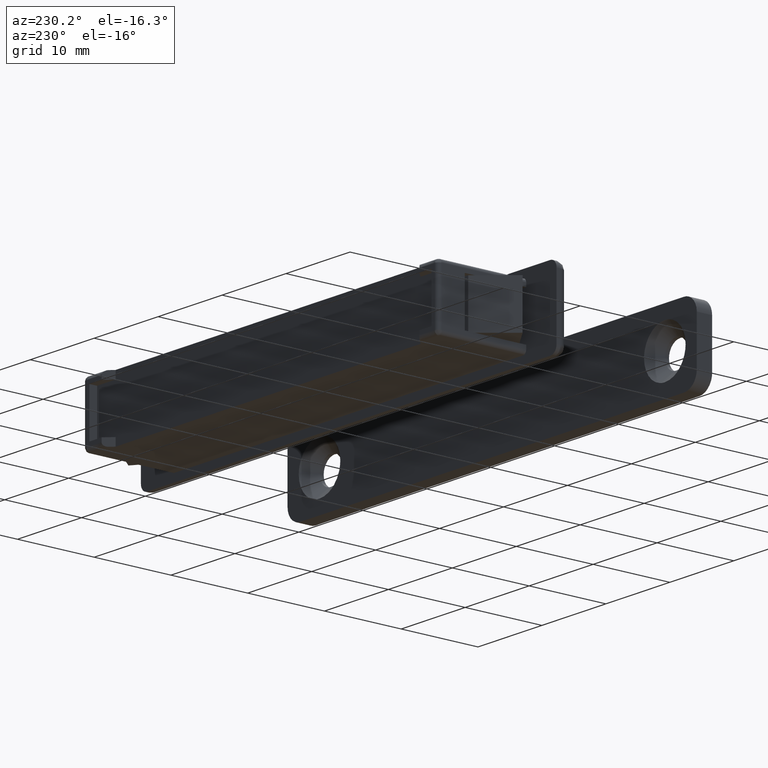
[diagram: clean part render]
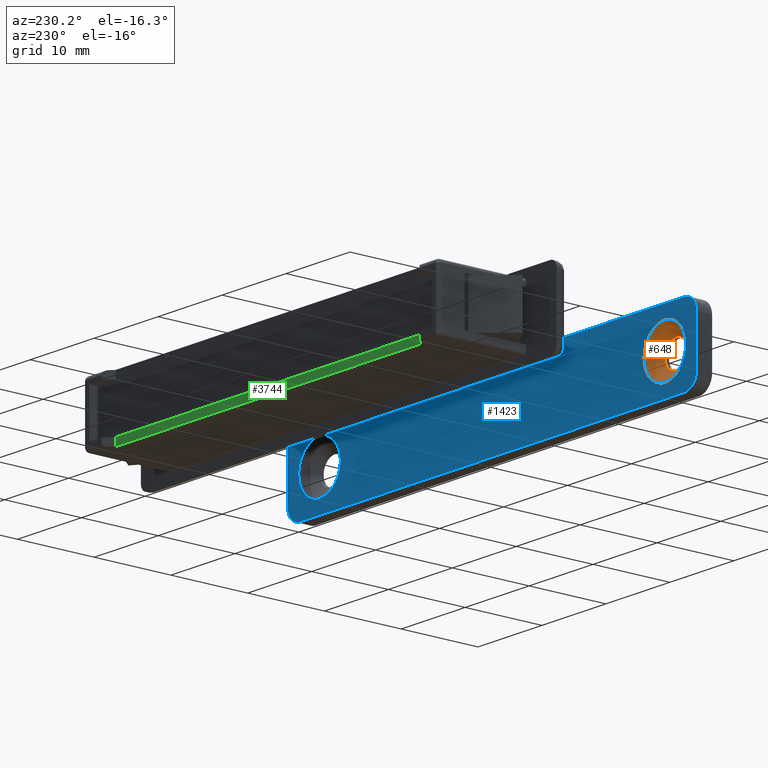
[diagram: same view with three faces highlighted in distinct colors, each labeled with its STEP entity id]
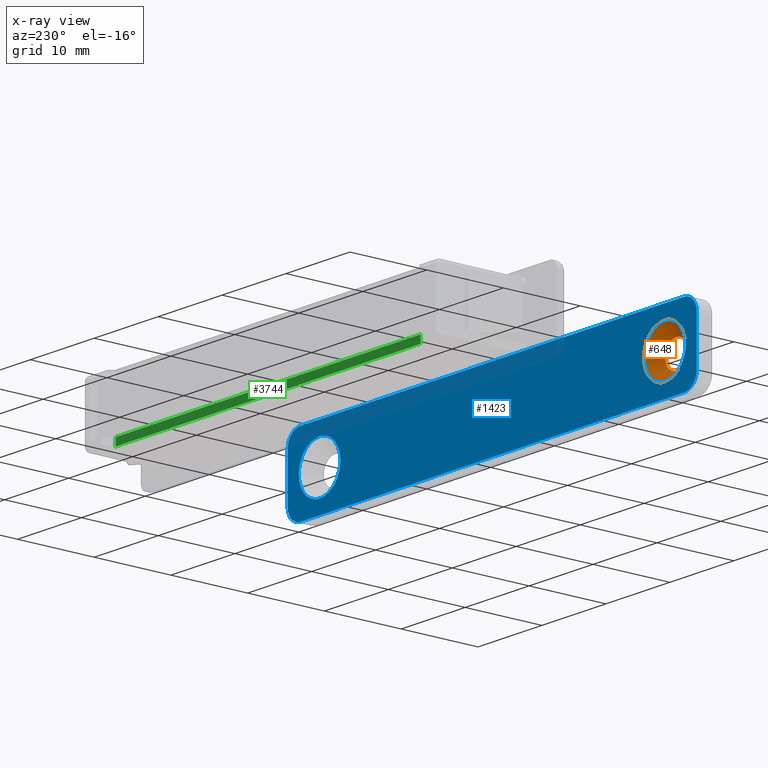
[diagram: x-ray of the same camera — body ghosted, the three highlighted faces saturated]
A machine part, auxiliary view with three faces highlighted in distinct colors.
The next image is the same camera in x-ray (body ghosted, the three faces saturated) — at least one of them is partly hidden behind the body in this view.
Their STEP definitions:

[orange] entity #648 — the highlighted face is a freeform B-spline surface patch.
#363=CARTESIAN_POINT('',(-25.869951581468609,-30.687369108172511,-1.336222202806416));
#364=VERTEX_POINT('',#363);
#365=CARTESIAN_POINT('',(-25.250000000000242,-30.687369108200102,0.000000923100523));
#366=VERTEX_POINT('',#365);
#367=CARTESIAN_POINT('',(-25.869951581468609,-30.687369108172511,-1.336222202806416));
#368=CARTESIAN_POINT('',(-25.785300761706772,-30.687369108173979,-1.264636306362357));
#369=CARTESIAN_POINT('',(-25.596274136952299,-30.687369108178029,-1.071201015653507));
#370=CARTESIAN_POINT('',(-25.331918540911470,-30.687369108187010,-0.633313099112182));
#371=CARTESIAN_POINT('',(-25.249709548635519,-30.687369108195199,-0.237609666251525));
#372=CARTESIAN_POINT('',(-25.250000000000242,-30.687369108200102,0.000000923100523));
#373=B_SPLINE_CURVE_WITH_KNOTS('',3,(#367,#368,#369,#370,#371,#372),.UNSPECIFIED.,.F.,.U.,(4,1,1,4),(0.000000017682369,0.332598493786491,0.807738864515684,1.520450349827912),.UNSPECIFIED.);
#374=EDGE_CURVE('',#364,#366,#373,.T.);
#376=CARTESIAN_POINT('',(-27.0,-30.687369108200102,1.750000000000004));
#377=VERTEX_POINT('',#376);
#378=CARTESIAN_POINT('',(-25.250000000000242,-30.687369108200102,0.000000923100523));
#379=CARTESIAN_POINT('',(-25.249941298082209,-30.687369108200109,0.157496760936301));
#380=CARTESIAN_POINT('',(-25.283092708498589,-30.687369108200102,0.400856575080289));
#381=CARTESIAN_POINT('',(-25.408839391638018,-30.687369108200130,0.752301882576160));
#382=CARTESIAN_POINT('',(-25.575654759185461,-30.687369108200109,1.038542964330779));
#383=CARTESIAN_POINT('',(-25.817191202440149,-30.687369108200080,1.305024050540657));
#384=CARTESIAN_POINT('',(-26.082963952697259,-30.687369108200091,1.502117373181682));
#385=CARTESIAN_POINT('',(-26.470374908150490,-30.687369108200109,1.691266496447891));
#386=CARTESIAN_POINT('',(-26.785208603257392,-30.687369108200048,1.750193415590393));
#387=CARTESIAN_POINT('',(-27.0,-30.687369108200102,1.750000000000004));
#388=B_SPLINE_CURVE_WITH_KNOTS('',3,(#378,#379,#380,#381,#382,#383,#384,#385,#386,#387),.UNSPECIFIED.,.F.,.U.,(4,1,1,1,1,1,1,4),(0.000000048250548,0.472477883818886,0.730195622285962,1.116776416771161,1.460378059243499,1.803995245813557,2.104674478416706,2.748962032298643),.UNSPECIFIED.);
#389=EDGE_CURVE('',#366,#377,#388,.T.);
#391=CARTESIAN_POINT('',(-28.204620388486159,-30.687368992970580,1.269405023894634));
#392=VERTEX_POINT('',#391);
#393=CARTESIAN_POINT('',(-27.0,-30.687369108200102,1.750000000000004));
#394=CARTESIAN_POINT('',(-27.207624327812521,-30.687369088339501,1.750166237444819));
#395=CARTESIAN_POINT('',(-27.650360015809849,-30.687369045989168,1.670201014724547));
#396=CARTESIAN_POINT('',(-28.034121819881971,-30.687369009279799,1.431600104418156));
#397=CARTESIAN_POINT('',(-28.204620388486159,-30.687368992970580,1.269405023894634));
#398=B_SPLINE_CURVE_WITH_KNOTS('',3,(#393,#394,#395,#396,#397),.UNSPECIFIED.,.F.,.U.,(4,1,4),(0.000000025859099,0.622816667539265,1.328662982661026),.UNSPECIFIED.);
#399=EDGE_CURVE('',#377,#392,#398,.T.);
#469=CARTESIAN_POINT('',(-27.0,-30.687369108200102,-1.749999999999997));
#470=VERTEX_POINT('',#469);
#471=CARTESIAN_POINT('',(-27.0,-30.687369108200102,-1.749999999999997));
#472=CARTESIAN_POINT('',(-26.859232223489141,-30.687369108196631,-1.750033574654257));
#473=CARTESIAN_POINT('',(-26.590515749692720,-30.687369108190129,-1.717401579655241));
#474=CARTESIAN_POINT('',(-26.203664045448139,-30.687369108180629,-1.575757406277428));
#475=CARTESIAN_POINT('',(-25.977416404044781,-30.687369108175140,-1.427142975115548));
#476=CARTESIAN_POINT('',(-25.869951581468609,-30.687369108172511,-1.336222202806416));
#477=B_SPLINE_CURVE_WITH_KNOTS('',3,(#471,#472,#473,#474,#475,#476),.UNSPECIFIED.,.F.,.U.,(4,1,1,4),(0.000000025045835,0.422303333709102,0.806211970245157,1.228515278889367),.UNSPECIFIED.);
#478=EDGE_CURVE('',#470,#364,#477,.T.);
#527=CARTESIAN_POINT('',(-28.336222635791561,-30.687369221986049,-1.130048787597618));
#528=VERTEX_POINT('',#527);
#537=CARTESIAN_POINT('',(-28.336222635791561,-30.687369221986049,-1.130048787597618));
#538=CARTESIAN_POINT('',(-28.183009437194489,-30.687369208939170,-1.311678625316899));
#539=CARTESIAN_POINT('',(-27.890177780732749,-30.687369184003181,-1.540762717516679));
#540=CARTESIAN_POINT('',(-27.411752714118940,-30.687369143262789,-1.716908473424129));
#541=CARTESIAN_POINT('',(-27.142542648023380,-30.687369120338388,-1.750038096688676));
#542=CARTESIAN_POINT('',(-27.0,-30.687369108200102,-1.749999999999997));
#543=B_SPLINE_CURVE_WITH_KNOTS('',3,(#537,#538,#539,#540,#541,#542),.UNSPECIFIED.,.F.,.U.,(4,1,1,4),(0.000000017646175,0.712711185059822,1.092823172370281,1.520449671587524),.UNSPECIFIED.);
#544=EDGE_CURVE('',#528,#470,#543,.T.);
#549=CARTESIAN_POINT('',(-28.307589038435637,-30.649869108069261,-1.105833240644721));
#550=CARTESIAN_POINT('',(-28.275940566186481,-30.649869108069257,-1.143255877146503));
#551=CARTESIAN_POINT('',(-28.242203610263630,-30.649869108069250,-1.178807210785480));
#552=CARTESIAN_POINT('',(-27.063396399478155,-30.649869108069254,-2.421010821049109));
#553=CARTESIAN_POINT('',(-25.821192789214521,-30.649869108069250,-1.242203610263625));
#554=CARTESIAN_POINT('',(-24.578989178950895,-30.649869108069254,-0.063396399478141));
#555=CARTESIAN_POINT('',(-25.757796389736370,-30.649869108069250,1.178807210785487));
#556=CARTESIAN_POINT('',(-26.936603600521845,-30.649869108069254,2.421010821049116));
#557=CARTESIAN_POINT('',(-28.178807210785479,-30.649869108069250,1.242203610263632));
#558=CARTESIAN_POINT('',(-29.510905013680748,-32.225806613568025,-2.123482337808179));
#559=CARTESIAN_POINT('',(-29.450131861482390,-32.225806613568018,-2.195343360541967));
#560=CARTESIAN_POINT('',(-29.385348287069469,-32.225806613568018,-2.263611003702958));
#561=CARTESIAN_POINT('',(-27.121737283366510,-32.225806613568018,-4.648959290772429));
#562=CARTESIAN_POINT('',(-24.736388996297041,-32.225806613568018,-2.385348287069467));
#563=CARTESIAN_POINT('',(-22.351040709227576,-32.225806613568018,-0.121737283366506));
#564=CARTESIAN_POINT('',(-24.614651712930531,-32.225806613568018,2.263611003702965));
#565=CARTESIAN_POINT('',(-26.878262716633497,-32.225806613568018,4.648959290772436));
#566=CARTESIAN_POINT('',(-29.263611003702959,-32.225806613568018,2.385348287069474));
#574=(BOUNDED_SURFACE()B_SPLINE_SURFACE(2,1,((#549,#558),(#550,#559),(#551,#560),(#552,#561),(#553,#562),(#554,#563),(#555,#564),(#556,#565),(#557,#566)),.UNSPECIFIED.,.F.,.F.,.U.)B_SPLINE_SURFACE_WITH_KNOTS((3,2,2,2,3),(2,2),(0.0,0.217938466198359,5.666400121157318,11.114861776116280,16.563323431075240),(0.0,2.228712193728781),.UNSPECIFIED.)GEOMETRIC_REPRESENTATION_ITEM()RATIONAL_B_SPLINE_SURFACE(((0.977505800795127,0.977505800795127),(0.988284271247462,0.988284271247462),(1.0,1.0),(0.707106781186548,0.707106781186548),(1.0,1.0),(0.707106781186548,0.707106781186548),(1.0,1.0),(0.707106781186548,0.707106781186548),(1.0,1.0)))REPRESENTATION_ITEM('')SURFACE());
#575=ORIENTED_EDGE('',*,*,#544,.F.);
#576=CARTESIAN_POINT('',(-29.481556037011892,-32.187369197889133,-2.098661791729774));
#577=VERTEX_POINT('',#576);
#578=CARTESIAN_POINT('',(-28.336222635791561,-30.687369221986049,-1.130048787597618));
#579=CARTESIAN_POINT('',(-29.481556037011892,-32.187369197889133,-2.098661791729774));
#580=QUASI_UNIFORM_CURVE('',1,(#578,#579),.UNSPECIFIED.,.F.,.U.);
#581=EDGE_CURVE('',#528,#577,#580,.T.);
#582=ORIENTED_EDGE('',*,*,#581,.T.);
#583=CARTESIAN_POINT('',(-27.0,-32.187369113433903,-3.250000005233816));
#584=VERTEX_POINT('',#583);
#585=CARTESIAN_POINT('',(-29.481556037011892,-32.187369197889133,-2.098661791729774));
#586=CARTESIAN_POINT('',(-29.339129575214759,-32.187369193042002,-2.267115465349023));
#587=CARTESIAN_POINT('',(-28.987877889681702,-32.187369181087497,-2.605637811159906));
#588=CARTESIAN_POINT('',(-28.366338194171650,-32.187369159935088,-2.980820896265155));
#589=CARTESIAN_POINT('',(-27.676484146067349,-32.187369136456269,-3.203412540408775));
#590=CARTESIAN_POINT('',(-27.220594909838500,-32.187369120942002,-3.250028492626062));
#591=CARTESIAN_POINT('',(-27.0,-32.187369113433903,-3.250000005233816));
#592=B_SPLINE_CURVE_WITH_KNOTS('',3,(#585,#586,#587,#588,#589,#590,#591),.UNSPECIFIED.,.F.,.U.,(4,1,1,1,4),(0.000000029024045,0.661786843499547,1.455918935192760,2.161840253436880,2.823627067895351),.UNSPECIFIED.);
#593=EDGE_CURVE('',#577,#584,#592,.T.);
#594=ORIENTED_EDGE('',*,*,#593,.T.);
#595=CARTESIAN_POINT('',(-23.749999994766259,-32.187369113433903,0.000000685151694));
#596=VERTEX_POINT('',#595);
#597=CARTESIAN_POINT('',(-27.0,-32.187369113433903,-3.250000005233816));
#598=CARTESIAN_POINT('',(-26.680914015803499,-32.187369113433952,-3.250134655332743));
#599=CARTESIAN_POINT('',(-26.189105868532351,-32.187369113433782,-3.176961809355476));
#600=CARTESIAN_POINT('',(-25.556020978290761,-32.187369113434087,-2.928224350536132));
#601=CARTESIAN_POINT('',(-25.040966946067240,-32.187369113433753,-2.619554350322326));
#602=CARTESIAN_POINT('',(-24.614819562353979,-32.187369113434023,-2.233306013322116));
#603=CARTESIAN_POINT('',(-24.240684061553790,-32.187369113433839,-1.747783642713261));
#604=CARTESIAN_POINT('',(-23.985308405447110,-32.187369113433860,-1.262871414167093));
#605=CARTESIAN_POINT('',(-23.795735787509269,-32.187369113433988,-0.651408107025271));
#606=CARTESIAN_POINT('',(-23.749953371863349,-32.187369113433903,-0.239300076728683));
#607=CARTESIAN_POINT('',(-23.749999994766259,-32.187369113433903,0.000000685151694));
#608=B_SPLINE_CURVE_WITH_KNOTS('',3,(#597,#598,#599,#600,#601,#602,#603,#604,#605,#606,#607),.UNSPECIFIED.,.F.,.U.,(4,1,1,1,1,1,1,1,4),(0.000000087859366,0.957208614726576,1.475699376697623,2.034085624819463,2.751963562427114,3.190694845469113,3.868724972023653,4.387225236721249,5.105120488736505),.UNSPECIFIED.);
#609=EDGE_CURVE('',#584,#596,#608,.T.);
#610=ORIENTED_EDGE('',*,*,#609,.T.);
#611=CARTESIAN_POINT('',(-27.0,-32.187369113433903,3.250000005233823));
#612=VERTEX_POINT('',#611);
#613=CARTESIAN_POINT('',(-23.749999994766259,-32.187369113433903,0.000000685151694));
#614=CARTESIAN_POINT('',(-23.749990599359080,-32.187369113433903,0.199412730241779));
#615=CARTESIAN_POINT('',(-23.792916038772180,-32.187369113434052,0.664723167888771));
#616=CARTESIAN_POINT('',(-24.011324981169839,-32.187369113433697,1.354291192862505));
#617=CARTESIAN_POINT('',(-24.442327707661558,-32.187369113434123,2.063499576746771));
#618=CARTESIAN_POINT('',(-25.022365761091901,-32.187369113433959,2.622585156587413));
#619=CARTESIAN_POINT('',(-25.697432246465318,-32.187369113433711,3.004928184488423));
#620=CARTESIAN_POINT('',(-26.348578196207029,-32.187369113434293,3.206779937833581));
#621=CARTESIAN_POINT('',(-26.787288468289368,-32.187369113433192,3.250025814918024));
#622=CARTESIAN_POINT('',(-27.0,-32.187369113433903,3.250000005233823));
#623=B_SPLINE_CURVE_WITH_KNOTS('',3,(#613,#614,#615,#616,#617,#618,#619,#620,#621,#622),.UNSPECIFIED.,.F.,.U.,(4,1,1,1,1,1,1,4),(0.000000088103653,0.598241988691055,1.395933335246470,2.153742067195230,3.071035846366633,3.788955230392972,4.466985254511177,5.105119716406013),.UNSPECIFIED.);
#624=EDGE_CURVE('',#596,#612,#623,.T.);
#625=ORIENTED_EDGE('',*,*,#624,.T.);
#626=CARTESIAN_POINT('',(-29.237152197989541,-32.187369027907309,2.357466523470006));
#627=VERTEX_POINT('',#626);
#628=CARTESIAN_POINT('',(-27.0,-32.187369113433903,3.250000005233823));
#629=CARTESIAN_POINT('',(-27.257029825939309,-32.187369103607622,3.250053157478100));
#630=CARTESIAN_POINT('',(-27.796777397915289,-32.187369082973113,3.185669499566602));
#631=CARTESIAN_POINT('',(-28.570820651894529,-32.187369053381140,2.887473166744052));
#632=CARTESIAN_POINT('',(-29.032118238375329,-32.187369035745803,2.552145874814842));
#633=CARTESIAN_POINT('',(-29.237152197989541,-32.187369027907309,2.357466523470006));
#634=B_SPLINE_CURVE_WITH_KNOTS('',3,(#628,#629,#630,#631,#632,#633),.UNSPECIFIED.,.F.,.U.,(4,1,1,4),(0.000000021833471,0.771087116081053,1.619278273036641,2.467473603929150),.UNSPECIFIED.);
#635=EDGE_CURVE('',#612,#627,#634,.T.);
#636=ORIENTED_EDGE('',*,*,#635,.T.);
#637=CARTESIAN_POINT('',(-28.204620388486159,-30.687368992970580,1.269405023894634));
#638=CARTESIAN_POINT('',(-29.237152197989541,-32.187369027907309,2.357466523470006));
#639=QUASI_UNIFORM_CURVE('',1,(#637,#638),.UNSPECIFIED.,.F.,.U.);
#640=EDGE_CURVE('',#392,#627,#639,.T.);
#641=ORIENTED_EDGE('',*,*,#640,.F.);
#642=ORIENTED_EDGE('',*,*,#399,.F.);
#643=ORIENTED_EDGE('',*,*,#389,.F.);
#644=ORIENTED_EDGE('',*,*,#374,.F.);
#645=ORIENTED_EDGE('',*,*,#478,.F.);
#646=EDGE_LOOP('',(#575,#582,#594,#610,#625,#636,#641,#642,#643,#644,#645));
#647=FACE_OUTER_BOUND('',#646,.T.);
#648=ADVANCED_FACE('',(#647),#574,.F.);

[blue] entity #1423 — the highlighted face is a freeform B-spline surface patch.
#576=CARTESIAN_POINT('',(-29.481556037011892,-32.187369197889133,-2.098661791729774));
#577=VERTEX_POINT('',#576);
#583=CARTESIAN_POINT('',(-27.0,-32.187369113433903,-3.250000005233816));
#584=VERTEX_POINT('',#583);
#585=CARTESIAN_POINT('',(-29.481556037011892,-32.187369197889133,-2.098661791729774));
#586=CARTESIAN_POINT('',(-29.339129575214759,-32.187369193042002,-2.267115465349023));
#587=CARTESIAN_POINT('',(-28.987877889681702,-32.187369181087497,-2.605637811159906));
#588=CARTESIAN_POINT('',(-28.366338194171650,-32.187369159935088,-2.980820896265155));
#589=CARTESIAN_POINT('',(-27.676484146067349,-32.187369136456269,-3.203412540408775));
#590=CARTESIAN_POINT('',(-27.220594909838500,-32.187369120942002,-3.250028492626062));
#591=CARTESIAN_POINT('',(-27.0,-32.187369113433903,-3.250000005233816));
#592=B_SPLINE_CURVE_WITH_KNOTS('',3,(#585,#586,#587,#588,#589,#590,#591),.UNSPECIFIED.,.F.,.U.,(4,1,1,1,4),(0.000000029024045,0.661786843499547,1.455918935192760,2.161840253436880,2.823627067895351),.UNSPECIFIED.);
#593=EDGE_CURVE('',#577,#584,#592,.T.);
#595=CARTESIAN_POINT('',(-23.749999994766259,-32.187369113433903,0.000000685151694));
#596=VERTEX_POINT('',#595);
#597=CARTESIAN_POINT('',(-27.0,-32.187369113433903,-3.250000005233816));
#598=CARTESIAN_POINT('',(-26.680914015803499,-32.187369113433952,-3.250134655332743));
#599=CARTESIAN_POINT('',(-26.189105868532351,-32.187369113433782,-3.176961809355476));
#600=CARTESIAN_POINT('',(-25.556020978290761,-32.187369113434087,-2.928224350536132));
#601=CARTESIAN_POINT('',(-25.040966946067240,-32.187369113433753,-2.619554350322326));
#602=CARTESIAN_POINT('',(-24.614819562353979,-32.187369113434023,-2.233306013322116));
#603=CARTESIAN_POINT('',(-24.240684061553790,-32.187369113433839,-1.747783642713261));
#604=CARTESIAN_POINT('',(-23.985308405447110,-32.187369113433860,-1.262871414167093));
#605=CARTESIAN_POINT('',(-23.795735787509269,-32.187369113433988,-0.651408107025271));
#606=CARTESIAN_POINT('',(-23.749953371863349,-32.187369113433903,-0.239300076728683));
#607=CARTESIAN_POINT('',(-23.749999994766259,-32.187369113433903,0.000000685151694));
#608=B_SPLINE_CURVE_WITH_KNOTS('',3,(#597,#598,#599,#600,#601,#602,#603,#604,#605,#606,#607),.UNSPECIFIED.,.F.,.U.,(4,1,1,1,1,1,1,1,4),(0.000000087859366,0.957208614726576,1.475699376697623,2.034085624819463,2.751963562427114,3.190694845469113,3.868724972023653,4.387225236721249,5.105120488736505),.UNSPECIFIED.);
#609=EDGE_CURVE('',#584,#596,#608,.T.);
#611=CARTESIAN_POINT('',(-27.0,-32.187369113433903,3.250000005233823));
#612=VERTEX_POINT('',#611);
#613=CARTESIAN_POINT('',(-23.749999994766259,-32.187369113433903,0.000000685151694));
#614=CARTESIAN_POINT('',(-23.749990599359080,-32.187369113433903,0.199412730241779));
#615=CARTESIAN_POINT('',(-23.792916038772180,-32.187369113434052,0.664723167888771));
#616=CARTESIAN_POINT('',(-24.011324981169839,-32.187369113433697,1.354291192862505));
#617=CARTESIAN_POINT('',(-24.442327707661558,-32.187369113434123,2.063499576746771));
#618=CARTESIAN_POINT('',(-25.022365761091901,-32.187369113433959,2.622585156587413));
#619=CARTESIAN_POINT('',(-25.697432246465318,-32.187369113433711,3.004928184488423));
#620=CARTESIAN_POINT('',(-26.348578196207029,-32.187369113434293,3.206779937833581));
#621=CARTESIAN_POINT('',(-26.787288468289368,-32.187369113433192,3.250025814918024));
#622=CARTESIAN_POINT('',(-27.0,-32.187369113433903,3.250000005233823));
#623=B_SPLINE_CURVE_WITH_KNOTS('',3,(#613,#614,#615,#616,#617,#618,#619,#620,#621,#622),.UNSPECIFIED.,.F.,.U.,(4,1,1,1,1,1,1,4),(0.000000088103653,0.598241988691055,1.395933335246470,2.153742067195230,3.071035846366633,3.788955230392972,4.466985254511177,5.105119716406013),.UNSPECIFIED.);
#624=EDGE_CURVE('',#596,#612,#623,.T.);
#626=CARTESIAN_POINT('',(-29.237152197989541,-32.187369027907309,2.357466523470006));
#627=VERTEX_POINT('',#626);
#628=CARTESIAN_POINT('',(-27.0,-32.187369113433903,3.250000005233823));
#629=CARTESIAN_POINT('',(-27.257029825939309,-32.187369103607622,3.250053157478100));
#630=CARTESIAN_POINT('',(-27.796777397915289,-32.187369082973113,3.185669499566602));
#631=CARTESIAN_POINT('',(-28.570820651894529,-32.187369053381140,2.887473166744052));
#632=CARTESIAN_POINT('',(-29.032118238375329,-32.187369035745803,2.552145874814842));
#633=CARTESIAN_POINT('',(-29.237152197989541,-32.187369027907309,2.357466523470006));
#634=B_SPLINE_CURVE_WITH_KNOTS('',3,(#628,#629,#630,#631,#632,#633),.UNSPECIFIED.,.F.,.U.,(4,1,1,4),(0.000000021833471,0.771087116081053,1.619278273036641,2.467473603929150),.UNSPECIFIED.);
#635=EDGE_CURVE('',#612,#627,#634,.T.);
#666=CARTESIAN_POINT('',(-30.250000005233741,-32.187369113433903,-0.000000685151739));
#667=VERTEX_POINT('',#666);
#668=CARTESIAN_POINT('',(-29.237152197989541,-32.187369027907309,2.357466523470006));
#669=CARTESIAN_POINT('',(-29.446483411396262,-32.187369035109768,2.158939265360506));
#670=CARTESIAN_POINT('',(-29.750795088674870,-32.187369048814013,1.781184551060807));
#671=CARTESIAN_POINT('',(-30.030429409396699,-32.187369069474613,1.211706237691132));
#672=CARTESIAN_POINT('',(-30.204294225071759,-32.187369090010392,0.645647127436156));
#673=CARTESIAN_POINT('',(-30.250055733529539,-32.187369104462761,0.247283863549860));
#674=CARTESIAN_POINT('',(-30.250000005233741,-32.187369113433903,-0.000000685151739));
#675=B_SPLINE_CURVE_WITH_KNOTS('',3,(#668,#669,#670,#671,#672,#673,#674),.UNSPECIFIED.,.F.,.U.,(4,1,1,1,4),(0.000000023645793,0.865481211342152,1.442462168113028,1.895807830567078,2.637647089007378),.UNSPECIFIED.);
#676=EDGE_CURVE('',#627,#667,#675,.T.);
#678=CARTESIAN_POINT('',(-30.250000005233741,-32.187369113433903,-0.000000685151739));
#679=CARTESIAN_POINT('',(-30.250189159287061,-32.187369126824542,-0.332750478927084));
#680=CARTESIAN_POINT('',(-30.178179087961020,-32.187369145469077,-0.796055060121679));
#681=CARTESIAN_POINT('',(-29.904473288978590,-32.187369174082868,-1.507091430457535));
#682=CARTESIAN_POINT('',(-29.673480972135248,-32.187369188763512,-1.871894033261685));
#683=CARTESIAN_POINT('',(-29.481556037011892,-32.187369197889133,-2.098661791729774));
#684=B_SPLINE_CURVE_WITH_KNOTS('',3,(#678,#679,#680,#681,#682,#683),.UNSPECIFIED.,.F.,.U.,(4,1,1,4),(0.000000016687517,0.998161063579456,1.390283530882319,2.281493631990151),.UNSPECIFIED.);
#685=EDGE_CURVE('',#667,#577,#684,.T.);
#925=CARTESIAN_POINT('',(24.518443962988108,-32.187369197889133,-2.098661791729775));
#926=VERTEX_POINT('',#925);
#932=CARTESIAN_POINT('',(27.0,-32.187369113433903,-3.250000005233816));
#933=VERTEX_POINT('',#932);
#934=CARTESIAN_POINT('',(24.518443962988108,-32.187369197889133,-2.098661791729775));
#935=CARTESIAN_POINT('',(24.660869494362601,-32.187369193042016,-2.267116465962977));
#936=CARTESIAN_POINT('',(24.990850641467571,-32.187369181811469,-2.585111740623832));
#937=CARTESIAN_POINT('',(25.606279116762920,-32.187369160867057,-2.968116432639506));
#938=CARTESIAN_POINT('',(26.294107147904210,-32.187369137456812,-3.200425153560568));
#939=CARTESIAN_POINT('',(26.779405283775699,-32.187369120942343,-3.250027158994243));
#940=CARTESIAN_POINT('',(27.0,-32.187369113433903,-3.250000005233816));
#941=B_SPLINE_CURVE_WITH_KNOTS('',3,(#934,#935,#936,#937,#938,#939,#940),.UNSPECIFIED.,.F.,.U.,(4,1,1,1,4),(0.000000029024501,0.661786843499852,1.367708161727390,2.161840253436735,2.823627067895350),.UNSPECIFIED.);
#942=EDGE_CURVE('',#926,#933,#941,.T.);
#944=CARTESIAN_POINT('',(30.250000005233741,-32.187369113433903,0.000000685151698));
#945=VERTEX_POINT('',#944);
#946=CARTESIAN_POINT('',(27.0,-32.187369113433903,-3.250000005233816));
#947=CARTESIAN_POINT('',(27.279191916937311,-32.187369113433917,-3.250086141370569));
#948=CARTESIAN_POINT('',(27.810925808549172,-32.187369113433817,-3.181037429604483));
#949=CARTESIAN_POINT('',(28.595864453428561,-32.187369113433952,-2.872813247946547));
#950=CARTESIAN_POINT('',(29.202544763320191,-32.187369113433917,-2.428608674714964));
#951=CARTESIAN_POINT('',(29.664401947876051,-32.187369113433910,-1.893011062915419));
#952=CARTESIAN_POINT('',(29.994063026546979,-32.187369113433952,-1.327511089607154));
#953=CARTESIAN_POINT('',(30.204180819234690,-32.187369113433618,-0.678017106115645));
#954=CARTESIAN_POINT('',(30.250021573131921,-32.187369113434272,-0.212709627538246));
#955=CARTESIAN_POINT('',(30.250000005233741,-32.187369113433903,0.000000685151698));
#956=B_SPLINE_CURVE_WITH_KNOTS('',3,(#946,#947,#948,#949,#950,#951,#952,#953,#954,#955),.UNSPECIFIED.,.F.,.U.,(4,1,1,1,1,1,1,4),(0.000000087869494,0.837555928062372,1.595353796783525,2.512702859765155,3.071036311594370,3.709187769321139,4.466985930666748,5.105120488736507),.UNSPECIFIED.);
#957=EDGE_CURVE('',#933,#945,#956,.T.);
#959=CARTESIAN_POINT('',(27.0,-32.187369113433903,3.250000005233823));
#960=VERTEX_POINT('',#959);
#961=CARTESIAN_POINT('',(30.250000005233741,-32.187369113433903,0.000000685151698));
#962=CARTESIAN_POINT('',(30.250054606288849,-32.187369113433817,0.265890802698202));
#963=CARTESIAN_POINT('',(30.184393667501482,-32.187369113434080,0.797645566637543));
#964=CARTESIAN_POINT('',(29.909640690990710,-32.187369113433633,1.510017853292336));
#965=CARTESIAN_POINT('',(29.542354238627610,-32.187369113434293,2.052336284016763));
#966=CARTESIAN_POINT('',(29.151331983661411,-32.187369113433533,2.453038786663469));
#967=CARTESIAN_POINT('',(28.650214366467800,-32.187369113433988,2.829616338881191));
#968=CARTESIAN_POINT('',(27.930558186404440,-32.187369113433952,3.159214839767559));
#969=CARTESIAN_POINT('',(27.319082650969140,-32.187369113433917,3.250139778378450));
#970=CARTESIAN_POINT('',(27.0,-32.187369113433903,3.250000005233823));
#971=B_SPLINE_CURVE_WITH_KNOTS('',3,(#961,#962,#963,#964,#965,#966,#967,#968,#969,#970),.UNSPECIFIED.,.F.,.U.,(4,1,1,1,1,1,1,4),(0.000000088101293,0.797663613243443,1.595353555506483,2.273397273112677,2.751963145294753,3.270455044067623,4.147911589176800,5.105119716406011),.UNSPECIFIED.);
#972=EDGE_CURVE('',#945,#960,#971,.T.);
#974=CARTESIAN_POINT('',(24.762847802010459,-32.187369027907309,2.357466523470007));
#975=VERTEX_POINT('',#974);
#976=CARTESIAN_POINT('',(27.0,-32.187369113433903,3.250000005233823));
#977=CARTESIAN_POINT('',(26.717261760404931,-32.187369102624771,3.250085696996137));
#978=CARTESIAN_POINT('',(26.177544567547589,-32.187369081991413,3.179127239136172));
#979=CARTESIAN_POINT('',(25.408226812612309,-32.187369052580188,2.872187477995094));
#980=CARTESIAN_POINT('',(24.967877072308230,-32.187369035745640,2.552157532591250));
#981=CARTESIAN_POINT('',(24.762847802010459,-32.187369027907309,2.357466523470007));
#982=B_SPLINE_CURVE_WITH_KNOTS('',3,(#976,#977,#978,#979,#980,#981),.UNSPECIFIED.,.F.,.U.,(4,1,1,4),(0.000000021829845,0.848195352717656,1.619278273035613,2.467473603929173),.UNSPECIFIED.);
#983=EDGE_CURVE('',#960,#975,#982,.T.);
#1014=CARTESIAN_POINT('',(23.749999994766249,-32.187369113433910,-0.000000685151737));
#1015=VERTEX_POINT('',#1014);
#1016=CARTESIAN_POINT('',(24.762847802010459,-32.187369027907309,2.357466523470007));
#1017=CARTESIAN_POINT('',(24.583439296218970,-32.187369034081222,2.187287420708313));
#1018=CARTESIAN_POINT('',(24.308209081985360,-32.187369046002893,1.858676727813526));
#1019=CARTESIAN_POINT('',(23.977191694419311,-32.187369067935052,1.254137454615939));
#1020=CARTESIAN_POINT('',(23.790307702921432,-32.187369090009483,0.645674598083852));
#1021=CARTESIAN_POINT('',(23.749994218375161,-32.187369106456543,0.192324081502026));
#1022=CARTESIAN_POINT('',(23.749999994766249,-32.187369113433910,-0.000000685151737));
#1023=B_SPLINE_CURVE_WITH_KNOTS('',3,(#1016,#1017,#1018,#1019,#1020,#1021,#1022),.UNSPECIFIED.,.F.,.U.,(4,1,1,1,4),(0.000000023643444,0.741839282070259,1.277623303277757,2.060662814752337,2.637647089007390),.UNSPECIFIED.);
#1024=EDGE_CURVE('',#975,#1015,#1023,.T.);
#1026=CARTESIAN_POINT('',(23.749999994766249,-32.187369113433910,-0.000000685151737));
#1027=CARTESIAN_POINT('',(23.749839388472559,-32.187369126823832,-0.332731461158891));
#1028=CARTESIAN_POINT('',(23.842043116525449,-32.187369150730142,-0.926789140671555));
#1029=CARTESIAN_POINT('',(24.159883530941158,-32.187369178778482,-1.623773992697830));
#1030=CARTESIAN_POINT('',(24.411019031930749,-32.187369192777517,-1.971640972896799));
#1031=CARTESIAN_POINT('',(24.518443962988108,-32.187369197889133,-2.098661791729775));
#1032=B_SPLINE_CURVE_WITH_KNOTS('',3,(#1026,#1027,#1028,#1029,#1030,#1031),.UNSPECIFIED.,.F.,.U.,(4,1,1,4),(0.000000016686245,0.998161063578762,1.782417803610013,2.281493631990172),.UNSPECIFIED.);
#1033=EDGE_CURVE('',#1015,#926,#1032,.T.);
#1069=CARTESIAN_POINT('',(32.0,-32.187369113433903,-2.999999232055145));
#1070=VERTEX_POINT('',#1069);
#1076=CARTESIAN_POINT('',(30.0,-32.187369113433903,-5.0));
#1077=VERTEX_POINT('',#1076);
#1078=CARTESIAN_POINT('',(30.0,-32.187369113433903,-5.0));
#1079=CARTESIAN_POINT('',(30.261830511099749,-32.187369113433959,-5.000265744762678));
#1080=CARTESIAN_POINT('',(30.719796999665778,-32.187369113433888,-4.908729140806244));
#1081=CARTESIAN_POINT('',(31.230493500821659,-32.187369113433903,-4.602530280236195));
#1082=CARTESIAN_POINT('',(31.544353866903169,-32.187369113433959,-4.288580525211100));
#1083=CARTESIAN_POINT('',(31.758047371174271,-32.187369113433768,-3.977120960692693));
#1084=CARTESIAN_POINT('',(31.944646521946702,-32.187369113434087,-3.556258529885468));
#1085=CARTESIAN_POINT('',(32.000115248376908,-32.187369113433810,-3.212726899965575));
#1086=CARTESIAN_POINT('',(32.0,-32.187369113433903,-2.999999232055145));
#1087=B_SPLINE_CURVE_WITH_KNOTS('',3,(#1078,#1079,#1080,#1081,#1082,#1083,#1084,#1085,#1086),.UNSPECIFIED.,.F.,.U.,(4,1,1,1,1,1,4),(0.000000038508486,0.785418770074340,1.374492982340101,1.767184889608941,2.110808771294588,2.503520657945915,3.141671921506530),.UNSPECIFIED.);
#1088=EDGE_CURVE('',#1077,#1070,#1087,.T.);
#1111=CARTESIAN_POINT('',(-29.999999022615700,-32.187369113433903,-4.999999999999780));
#1112=VERTEX_POINT('',#1111);
#1113=CARTESIAN_POINT('',(-29.999999022615700,-32.187369113433903,-4.999999999999780));
#1114=CARTESIAN_POINT('',(30.0,-32.187369113433903,-5.0));
#1115=QUASI_UNIFORM_CURVE('',1,(#1113,#1114),.UNSPECIFIED.,.F.,.U.);
#1116=EDGE_CURVE('',#1112,#1077,#1115,.T.);
#1155=CARTESIAN_POINT('',(-32.0,-32.187369113433903,-3.0));
#1156=VERTEX_POINT('',#1155);
#1157=CARTESIAN_POINT('',(-32.0,-32.187369113433903,-3.0));
#1158=CARTESIAN_POINT('',(-32.000172227457583,-32.187369113434002,-3.229096978229139));
#1159=CARTESIAN_POINT('',(-31.931751161910391,-32.187369113433803,-3.621682336412470));
#1160=CARTESIAN_POINT('',(-31.694538259555209,-32.187369113433860,-4.092899900276610));
#1161=CARTESIAN_POINT('',(-31.423328845017451,-32.187369113434123,-4.423332472636164));
#1162=CARTESIAN_POINT('',(-31.131010237896160,-32.187369113433562,-4.663224904216293));
#1163=CARTESIAN_POINT('',(-30.785709217930211,-32.187369113434151,-4.853293005027373));
#1164=CARTESIAN_POINT('',(-30.409058860003508,-32.187369113434002,-4.972605781614158));
#1165=CARTESIAN_POINT('',(-30.130896819741100,-32.187369113433803,-5.000014923297562));
#1166=CARTESIAN_POINT('',(-29.999999022615700,-32.187369113433903,-4.999999999999780));
#1167=B_SPLINE_CURVE_WITH_KNOTS('',3,(#1157,#1158,#1159,#1160,#1161,#1162,#1163,#1164,#1165,#1166),.UNSPECIFIED.,.F.,.U.,(4,1,1,1,1,1,1,4),(0.000000038365726,0.687238201869331,1.178138466524245,1.570836075590836,1.963540752082250,2.307165337031544,2.748967363118379,3.141672039552794),.UNSPECIFIED.);
#1168=EDGE_CURVE('',#1156,#1112,#1167,.T.);
#1191=CARTESIAN_POINT('',(-32.0,-32.187369113433903,2.999999825467075));
#1192=VERTEX_POINT('',#1191);
#1193=CARTESIAN_POINT('',(-32.0,-32.187369113433903,2.999999825467075));
#1194=CARTESIAN_POINT('',(-32.0,-32.187369113433903,-3.0));
#1195=QUASI_UNIFORM_CURVE('',1,(#1193,#1194),.UNSPECIFIED.,.F.,.U.);
#1196=EDGE_CURVE('',#1192,#1156,#1195,.T.);
#1236=CARTESIAN_POINT('',(-30.0,-32.187369113433903,5.0));
#1237=VERTEX_POINT('',#1236);
#1238=CARTESIAN_POINT('',(-30.0,-32.187369113433903,5.0));
#1239=CARTESIAN_POINT('',(-30.229102708951640,-32.187369113433839,5.000177779685336));
#1240=CARTESIAN_POINT('',(-30.588950375532530,-32.187369113433988,4.937433395843406));
#1241=CARTESIAN_POINT('',(-31.034842082663310,-32.187369113433867,4.726512990419826));
#1242=CARTESIAN_POINT('',(-31.325361420659799,-32.187369113433917,4.511036509911104));
#1243=CARTESIAN_POINT('',(-31.585569450396349,-32.187369113433931,4.237740220570441));
#1244=CARTESIAN_POINT('',(-31.801049075268089,-32.187369113433888,3.906573923997311));
#1245=CARTESIAN_POINT('',(-31.961633175271860,-32.187369113433931,3.474492091590246));
#1246=CARTESIAN_POINT('',(-32.000037998498300,-32.187369113433910,3.163627942865508));
#1247=CARTESIAN_POINT('',(-32.0,-32.187369113433903,2.999999825467075));
#1248=B_SPLINE_CURVE_WITH_KNOTS('',3,(#1238,#1239,#1240,#1241,#1242,#1243,#1244,#1245,#1246,#1247),.UNSPECIFIED.,.F.,.U.,(4,1,1,1,1,1,1,4),(0.000000038918749,0.687238103344991,1.079959122903125,1.472666503644301,1.767184701078545,2.208987044376629,2.650788249982250,3.141671587041282),.UNSPECIFIED.);
#1249=EDGE_CURVE('',#1237,#1192,#1248,.T.);
#1272=CARTESIAN_POINT('',(29.999999685840748,-32.187369113433903,5.0));
#1273=VERTEX_POINT('',#1272);
#1274=CARTESIAN_POINT('',(29.999999685840748,-32.187369113433903,5.0));
#1275=CARTESIAN_POINT('',(-30.0,-32.187369113433903,5.0));
#1276=QUASI_UNIFORM_CURVE('',1,(#1274,#1275),.UNSPECIFIED.,.F.,.U.);
#1277=EDGE_CURVE('',#1273,#1237,#1276,.T.);
#1317=CARTESIAN_POINT('',(32.0,-32.187369113433903,3.000000767944870));
#1318=VERTEX_POINT('',#1317);
#1319=CARTESIAN_POINT('',(32.0,-32.187369113433903,3.000000767944870));
#1320=CARTESIAN_POINT('',(32.000009252664377,-32.187369113433910,3.130895963031854));
#1321=CARTESIAN_POINT('',(31.971016293771651,-32.187369113433867,3.425429047166230));
#1322=CARTESIAN_POINT('',(31.836559300306291,-32.187369113433988,3.832427069084949));
#1323=CARTESIAN_POINT('',(31.616760613497888,-32.187369113433789,4.199070586806875));
#1324=CARTESIAN_POINT('',(31.296623455816739,-32.187369113433917,4.552453297391340));
#1325=CARTESIAN_POINT('',(30.879923812792491,-32.187369113433931,4.823542647495459));
#1326=CARTESIAN_POINT('',(30.409051812313351,-32.187369113433860,4.972592724007548));
#1327=CARTESIAN_POINT('',(30.130897427471240,-32.187369113433917,5.000015367681320));
#1328=CARTESIAN_POINT('',(29.999999685840748,-32.187369113433903,5.0));
#1329=B_SPLINE_CURVE_WITH_KNOTS('',3,(#1319,#1320,#1321,#1322,#1323,#1324,#1325,#1326,#1327,#1328),.UNSPECIFIED.,.F.,.U.,(4,1,1,1,1,1,1,4),(0.000000039346948,0.392699937203587,0.883599018401706,1.276316278339115,1.669008739285584,2.307164744765522,2.748966656854632,3.141671232901895),.UNSPECIFIED.);
#1330=EDGE_CURVE('',#1318,#1273,#1329,.T.);
#1351=CARTESIAN_POINT('',(32.0,-32.187369113433903,-2.999999232055145));
#1352=CARTESIAN_POINT('',(32.0,-32.187369113433903,3.000000767944870));
#1353=QUASI_UNIFORM_CURVE('',1,(#1351,#1352),.UNSPECIFIED.,.F.,.U.);
#1354=EDGE_CURVE('',#1070,#1318,#1353,.T.);
#1392=CARTESIAN_POINT('',(-35.196799875955577,-32.187369113433903,5.499499980618060));
#1393=CARTESIAN_POINT('',(35.196801592569351,-32.187369113433903,5.499499980618060));
#1394=CARTESIAN_POINT('',(-35.196799875955577,-32.187369113433903,-5.499500248838961));
#1395=CARTESIAN_POINT('',(35.196801592569351,-32.187369113433903,-5.499500248838961));
#1396=B_SPLINE_SURFACE_WITH_KNOTS('',1,1,((#1392,#1394),(#1393,#1395)),.UNSPECIFIED.,.F.,.F.,.U.,(2,2),(2,2),(0.0,70.393601468524935),(0.0,10.999000229457019),.UNSPECIFIED.);
#1397=ORIENTED_EDGE('',*,*,#1354,.T.);
#1398=ORIENTED_EDGE('',*,*,#1330,.T.);
#1399=ORIENTED_EDGE('',*,*,#1277,.T.);
#1400=ORIENTED_EDGE('',*,*,#1249,.T.);
#1401=ORIENTED_EDGE('',*,*,#1196,.T.);
#1402=ORIENTED_EDGE('',*,*,#1168,.T.);
#1403=ORIENTED_EDGE('',*,*,#1116,.T.);
#1404=ORIENTED_EDGE('',*,*,#1088,.T.);
#1405=EDGE_LOOP('',(#1397,#1398,#1399,#1400,#1401,#1402,#1403,#1404));
#1406=FACE_OUTER_BOUND('',#1405,.T.);
#1407=ORIENTED_EDGE('',*,*,#957,.F.);
#1408=ORIENTED_EDGE('',*,*,#942,.F.);
#1409=ORIENTED_EDGE('',*,*,#1033,.F.);
#1410=ORIENTED_EDGE('',*,*,#1024,.F.);
#1411=ORIENTED_EDGE('',*,*,#983,.F.);
#1412=ORIENTED_EDGE('',*,*,#972,.F.);
#1413=EDGE_LOOP('',(#1407,#1408,#1409,#1410,#1411,#1412));
#1414=FACE_BOUND('',#1413,.T.);
#1415=ORIENTED_EDGE('',*,*,#609,.F.);
#1416=ORIENTED_EDGE('',*,*,#593,.F.);
#1417=ORIENTED_EDGE('',*,*,#685,.F.);
#1418=ORIENTED_EDGE('',*,*,#676,.F.);
#1419=ORIENTED_EDGE('',*,*,#635,.F.);
#1420=ORIENTED_EDGE('',*,*,#624,.F.);
#1421=EDGE_LOOP('',(#1415,#1416,#1417,#1418,#1419,#1420));
#1422=FACE_BOUND('',#1421,.T.);
#1423=ADVANCED_FACE('',(#1406,#1414,#1422),#1396,.F.);

[green] entity #3744 — the highlighted face is a freeform B-spline surface patch.
#2930=CARTESIAN_POINT('',(-23.850006000000000,-1.0,-4.0));
#2931=VERTEX_POINT('',#2930);
#2937=CARTESIAN_POINT('',(23.850003000000001,-1.0,-4.0));
#2938=VERTEX_POINT('',#2937);
#2939=CARTESIAN_POINT('',(23.850003000000001,-1.0,-4.0));
#2940=CARTESIAN_POINT('',(-23.850006000000000,-1.0,-4.0));
#2941=QUASI_UNIFORM_CURVE('',1,(#2939,#2940),.UNSPECIFIED.,.F.,.U.);
#2942=EDGE_CURVE('',#2938,#2931,#2941,.T.);
#3536=CARTESIAN_POINT('',(23.850003000000001,-1.0,-3.0));
#3537=VERTEX_POINT('',#3536);
#3543=CARTESIAN_POINT('',(-23.850006000000000,-1.0,-3.0));
#3544=VERTEX_POINT('',#3543);
#3545=CARTESIAN_POINT('',(-23.850006000000000,-1.0,-3.0));
#3546=CARTESIAN_POINT('',(23.850003000000001,-1.0,-3.0));
#3547=QUASI_UNIFORM_CURVE('',1,(#3545,#3546),.UNSPECIFIED.,.F.,.U.);
#3548=EDGE_CURVE('',#3544,#3537,#3547,.T.);
#3720=CARTESIAN_POINT('',(23.850003000000001,-1.0,-4.0));
#3721=CARTESIAN_POINT('',(23.850003000000001,-1.0,-3.0));
#3722=QUASI_UNIFORM_CURVE('',1,(#3720,#3721),.UNSPECIFIED.,.F.,.U.);
#3723=EDGE_CURVE('',#2938,#3537,#3722,.T.);
#3729=CARTESIAN_POINT('',(-26.232621634453750,-1.0,-4.049949998061805));
#3730=CARTESIAN_POINT('',(-26.232621634453750,-1.0,-2.950049975116103));
#3731=CARTESIAN_POINT('',(26.232616075625870,-1.0,-4.049949998061805));
#3732=CARTESIAN_POINT('',(26.232616075625870,-1.0,-2.950049975116103));
#3733=B_SPLINE_SURFACE_WITH_KNOTS('',1,1,((#3729,#3731),(#3730,#3732)),.UNSPECIFIED.,.F.,.F.,.U.,(2,2),(2,2),(0.041708334948495,0.958291687403247),(0.0,52.465237710079620),.UNSPECIFIED.);
#3734=CARTESIAN_POINT('',(-23.850006000000000,-1.0,-4.0));
#3735=CARTESIAN_POINT('',(-23.850006000000000,-1.0,-3.0));
#3736=QUASI_UNIFORM_CURVE('',1,(#3734,#3735),.UNSPECIFIED.,.F.,.U.);
#3737=EDGE_CURVE('',#2931,#3544,#3736,.T.);
#3738=ORIENTED_EDGE('',*,*,#3737,.T.);
#3739=ORIENTED_EDGE('',*,*,#3548,.T.);
#3740=ORIENTED_EDGE('',*,*,#3723,.F.);
#3741=ORIENTED_EDGE('',*,*,#2942,.T.);
#3742=EDGE_LOOP('',(#3738,#3739,#3740,#3741));
#3743=FACE_OUTER_BOUND('',#3742,.T.);
#3744=ADVANCED_FACE('',(#3743),#3733,.T.);